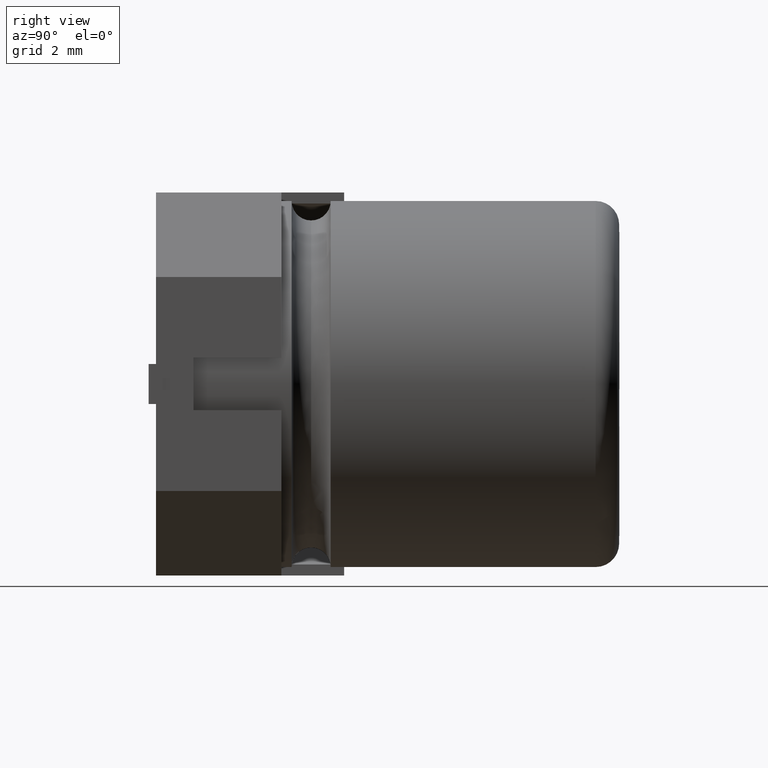
[diagram: clean part render]
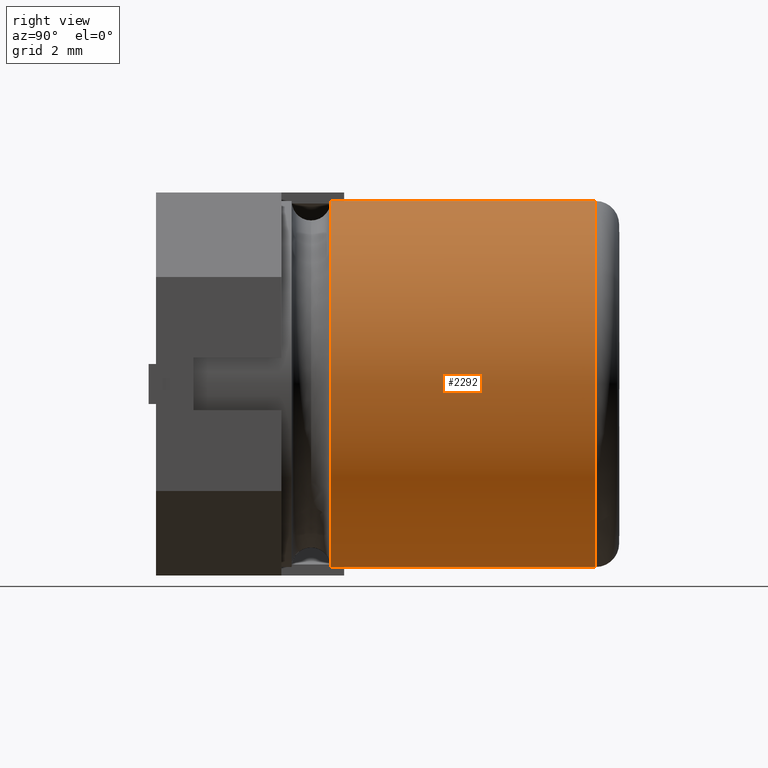
[diagram: same view with one face highlighted and labeled with its STEP entity id]
A machine part, right view. The second image highlights one B-rep face of the part: STEP entity #2292.
In plain terms, the highlighted cylindrical surface (partial cylindrical patch) has radius 5.0185 mm, axis along (-0, -1, -0).
Its self-contained STEP definition (entity closure, byte-faithful):
#14 = CIRCLE ( 'NONE', #376, 5.018475000000000500 ) ;
#80 = CARTESIAN_POINT ( 'NONE',  ( 5.500000000000000000, 12.70000000000000300, -10.26847499999999900 ) ) ;
#146 = CARTESIAN_POINT ( 'NONE',  ( 5.500000000000000900, 4.789770000000000700, -0.2315250000000006500 ) ) ;
#248 = VECTOR ( 'NONE', #884, 1000.000000000000000 ) ;
#272 = DIRECTION ( 'NONE',  ( 0.0000000000000000000, 0.0000000000000000000, -1.000000000000000000 ) ) ;
#333 = CARTESIAN_POINT ( 'NONE',  ( 5.500000000000000900, 12.05500000000000300, -0.2315249999999989300 ) ) ;
#376 = AXIS2_PLACEMENT_3D ( 'NONE', #1438, #3049, #3272 ) ;
#507 = EDGE_CURVE ( 'NONE', #1386, #2776, #14, .T. ) ;
#597 = ORIENTED_EDGE ( 'NONE', *, *, #2328, .F. ) ;
#613 = CARTESIAN_POINT ( 'NONE',  ( 5.500000000000000900, 12.70000000000000300, -0.2315249999999989300 ) ) ;
#735 = EDGE_LOOP ( 'NONE', ( #1353, #1405, #597, #1370 ) ) ;
#736 = DIRECTION ( 'NONE',  ( -0.0000000000000000000, -1.000000000000000000, -0.0000000000000000000 ) ) ;
#788 = VECTOR ( 'NONE', #1930, 1000.000000000000000 ) ;
#884 = DIRECTION ( 'NONE',  ( -0.0000000000000000000, -1.000000000000000000, -0.0000000000000000000 ) ) ;
#971 = DIRECTION ( 'NONE',  ( 0.0000000000000000000, 0.0000000000000000000, -1.000000000000000000 ) ) ;
#1018 = AXIS2_PLACEMENT_3D ( 'NONE', #3163, #3116, #272 ) ;
#1071 = EDGE_CURVE ( 'NONE', #1386, #3286, #2555, .T. ) ;
#1353 = ORIENTED_EDGE ( 'NONE', *, *, #507, .T. ) ;
#1367 = LINE ( 'NONE', #613, #248 ) ;
#1370 = ORIENTED_EDGE ( 'NONE', *, *, #1071, .F. ) ;
#1380 = CARTESIAN_POINT ( 'NONE',  ( 5.500000000000000000, 12.05500000000000300, -10.26847499999999900 ) ) ;
#1386 = VERTEX_POINT ( 'NONE', #1380 ) ;
#1405 = ORIENTED_EDGE ( 'NONE', *, *, #3258, .T. ) ;
#1438 = CARTESIAN_POINT ( 'NONE',  ( 5.500000000000000000, 12.05500000000000300, -5.249999999999999100 ) ) ;
#1532 = CARTESIAN_POINT ( 'NONE',  ( 5.500000000000000000, 12.70000000000000300, -5.249999999999999100 ) ) ;
#1639 = VERTEX_POINT ( 'NONE', #146 ) ;
#1710 = CARTESIAN_POINT ( 'NONE',  ( 5.500000000000000000, 4.789770000000000700, -10.26847499999999900 ) ) ;
#1790 = AXIS2_PLACEMENT_3D ( 'NONE', #1532, #736, #971 ) ;
#1876 = CYLINDRICAL_SURFACE ( 'NONE', #1790, 5.018474999999999600 ) ;
#1930 = DIRECTION ( 'NONE',  ( -0.0000000000000000000, -1.000000000000000000, -0.0000000000000000000 ) ) ;
#2237 = CIRCLE ( 'NONE', #1018, 5.018474999999998700 ) ;
#2292 = ADVANCED_FACE ( 'NONE', ( #2894 ), #1876, .T. ) ;
#2328 = EDGE_CURVE ( 'NONE', #3286, #1639, #2237, .T. ) ;
#2555 = LINE ( 'NONE', #80, #788 ) ;
#2776 = VERTEX_POINT ( 'NONE', #333 ) ;
#2894 = FACE_OUTER_BOUND ( 'NONE', #735, .T. ) ;
#3049 = DIRECTION ( 'NONE',  ( -0.0000000000000000000, -1.000000000000000000, -0.0000000000000000000 ) ) ;
#3116 = DIRECTION ( 'NONE',  ( -0.0000000000000000000, -1.000000000000000000, -0.0000000000000000000 ) ) ;
#3163 = CARTESIAN_POINT ( 'NONE',  ( 5.500000000000000000, 4.789770000000000700, -5.250000000000000000 ) ) ;
#3258 = EDGE_CURVE ( 'NONE', #2776, #1639, #1367, .T. ) ;
#3272 = DIRECTION ( 'NONE',  ( 0.0000000000000000000, 0.0000000000000000000, 1.000000000000000000 ) ) ;
#3286 = VERTEX_POINT ( 'NONE', #1710 ) ;